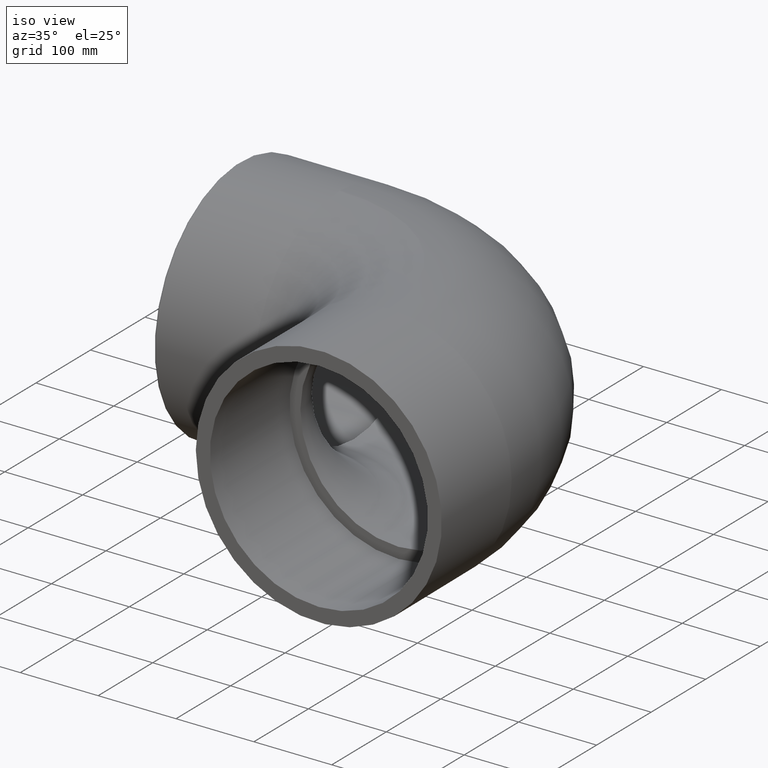
[diagram: clean part render]
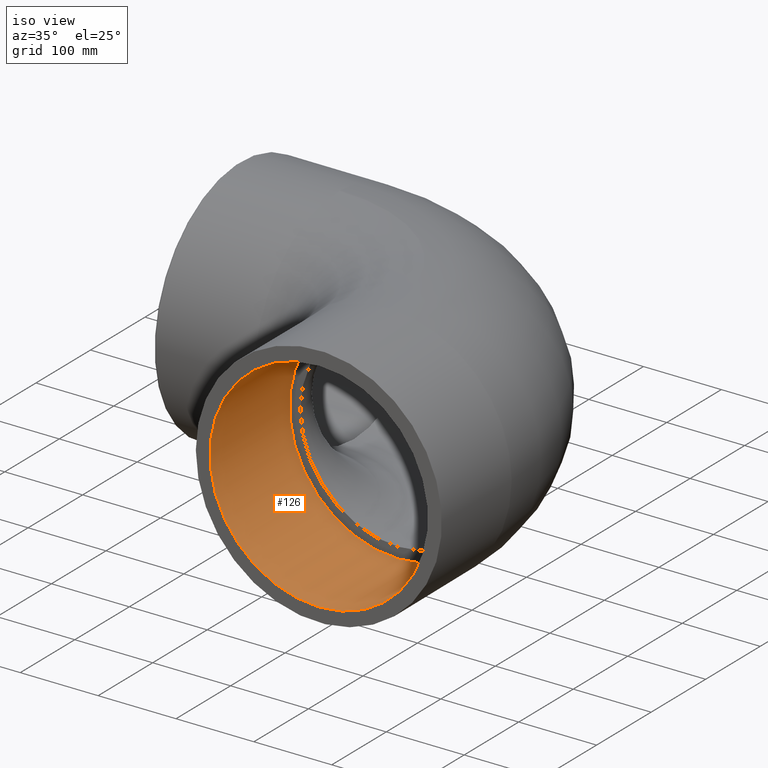
[diagram: same view with one face highlighted and labeled with its STEP entity id]
A machine part, iso view. The second image highlights one B-rep face of the part: STEP entity #126.
In plain terms, the highlighted cylindrical surface (bore or boss wall) has radius 140 mm, axis along (0, 1, 0).
Its self-contained STEP definition (entity closure, byte-faithful):
#19=CYLINDRICAL_SURFACE('',#141,140.);
#24=FACE_BOUND('',#48,.T.);
#35=FACE_OUTER_BOUND('',#47,.T.);
#47=EDGE_LOOP('',(#102));
#48=EDGE_LOOP('',(#103));
#69=CIRCLE('',#142,140.);
#70=CIRCLE('',#143,140.);
#80=VERTEX_POINT('',#213);
#81=VERTEX_POINT('',#215);
#91=EDGE_CURVE('',#80,#80,#69,.T.);
#92=EDGE_CURVE('',#81,#81,#70,.T.);
#102=ORIENTED_EDGE('',*,*,#91,.T.);
#103=ORIENTED_EDGE('',*,*,#92,.F.);
#126=ADVANCED_FACE('',(#35,#24),#19,.F.);
#141=AXIS2_PLACEMENT_3D('',#212,#168,#169);
#142=AXIS2_PLACEMENT_3D('',#214,#170,#171);
#143=AXIS2_PLACEMENT_3D('',#216,#172,#173);
#168=DIRECTION('center_axis',(6.12323399573677E-17,1.,0.));
#169=DIRECTION('ref_axis',(0.,0.,-1.));
#170=DIRECTION('center_axis',(6.12323399573677E-17,1.,0.));
#171=DIRECTION('ref_axis',(0.,0.,-1.));
#172=DIRECTION('center_axis',(6.12323399573677E-17,1.,0.));
#173=DIRECTION('ref_axis',(0.,0.,-1.));
#212=CARTESIAN_POINT('Origin',(-2.06965309055903E-14,-338.,0.));
#213=CARTESIAN_POINT('',(-2.89016644598775E-14,-192.,140.));
#214=CARTESIAN_POINT('Origin',(-1.17566092718146E-14,-192.,0.));
#215=CARTESIAN_POINT('',(-3.78415860936532E-14,-338.,140.));
#216=CARTESIAN_POINT('Origin',(-2.06965309055903E-14,-338.,0.));